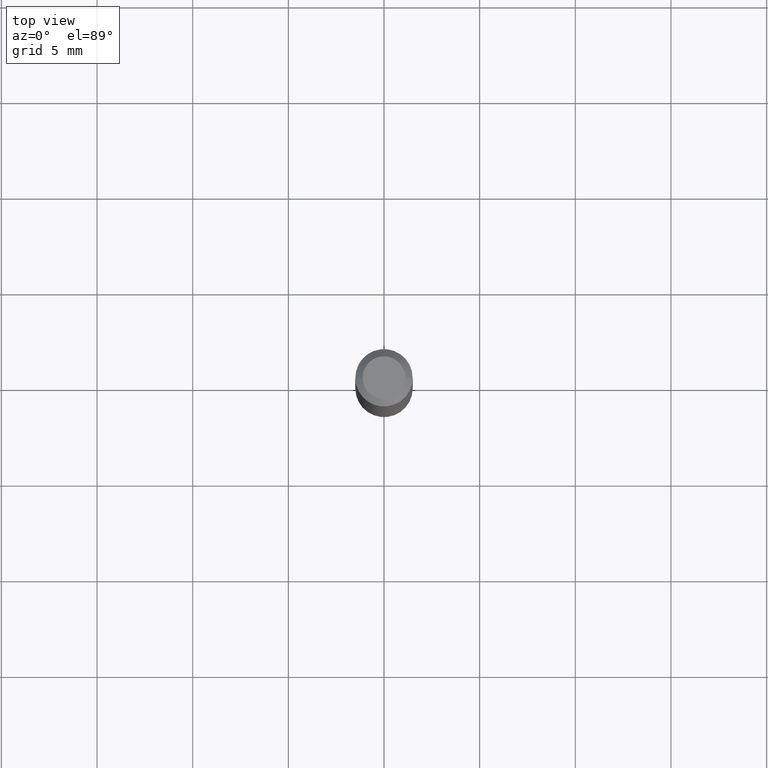
[diagram: clean part render]
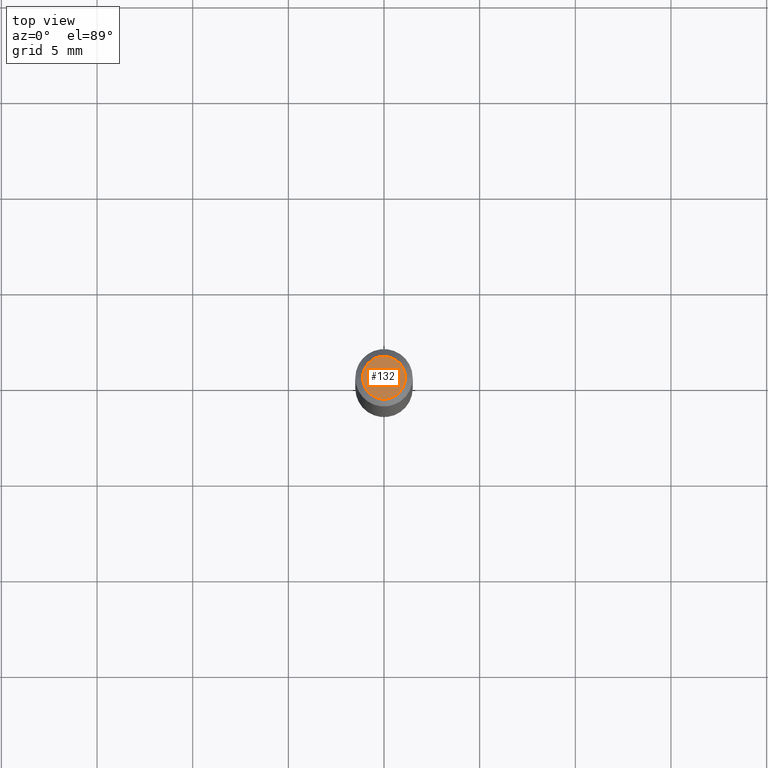
[diagram: same view with one face highlighted and labeled with its STEP entity id]
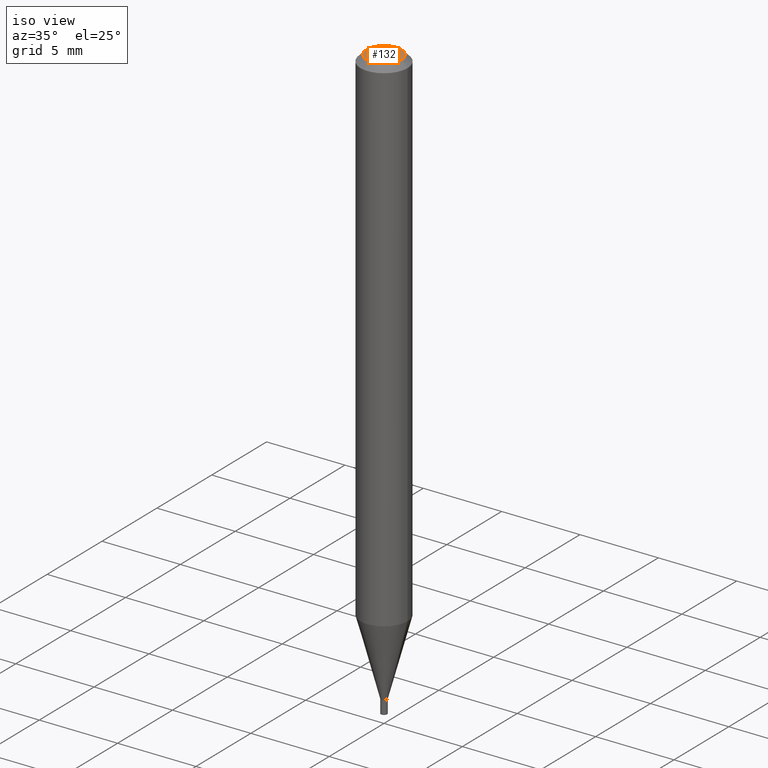
[diagram: same view with one face highlighted and labeled with its STEP entity id]
A machine part, top view. The second image highlights one B-rep face of the part: STEP entity #132.
A second angle (iso view) of the same face is appended — the face is thin or edge-on in the first view.
In plain terms, the highlighted planar face has unit normal (0, -0, -1).
Its self-contained STEP definition (entity closure, byte-faithful):
#11 = CARTESIAN_POINT ( 'NONE',  ( 3.075995059520799729E-16, 0.04404999999999999888, 7.721735782992738734E-17 ) ) ;
#57 = CIRCLE ( 'NONE', #443, 0.04404999999999999888 ) ;
#78 = EDGE_CURVE ( 'NONE', #104, #418, #135, .T. ) ;
#85 = AXIS2_PLACEMENT_3D ( 'NONE', #11, #254, #193 ) ;
#88 = FACE_OUTER_BOUND ( 'NONE', #355, .T. ) ;
#101 = CARTESIAN_POINT ( 'NONE',  ( -1.129890276342019696E-44, 1.613183862664992778E-30, 4.620342216119358569E-16 ) ) ;
#104 = VERTEX_POINT ( 'NONE', #409 ) ;
#125 = DIRECTION ( 'NONE',  ( 1.000000000000000000, -6.982962677686265922E-15, 4.819687581474398999E-29 ) ) ;
#132 = ADVANCED_FACE ( 'NONE', ( #88 ), #326, .F. ) ;
#135 = CIRCLE ( 'NONE', #411, 0.04404999999999999888 ) ;
#148 = DIRECTION ( 'NONE',  ( -2.445468806185136597E-29, 3.491481338843145583E-15, 1.000000000000000000 ) ) ;
#151 = CARTESIAN_POINT ( 'NONE',  ( -1.129890276342019696E-44, 1.613183862664992778E-30, 4.620342216119358569E-16 ) ) ;
#193 = DIRECTION ( 'NONE',  ( -1.000000000000000000, 6.982962677686265922E-15, -4.876176775795935793E-29 ) ) ;
#201 = CARTESIAN_POINT ( 'NONE',  ( 0.04404999999999999888, -3.798447818264452683E-16, 4.620342216119383221E-16 ) ) ;
#207 = DIRECTION ( 'NONE',  ( -2.445468806185136597E-29, 3.491481338843145583E-15, 1.000000000000000000 ) ) ;
#254 = DIRECTION ( 'NONE',  ( 2.438088387897960049E-29, -3.491481338843145188E-15, -1.000000000000000000 ) ) ;
#308 = DIRECTION ( 'NONE',  ( 1.000000000000000000, -6.982962677686265922E-15, 4.819687581474398999E-29 ) ) ;
#311 = ORIENTED_EDGE ( 'NONE', *, *, #78, .T. ) ;
#326 = PLANE ( 'NONE',  #85 ) ;
#355 = EDGE_LOOP ( 'NONE', ( #311, #386 ) ) ;
#363 = EDGE_CURVE ( 'NONE', #418, #104, #57, .T. ) ;
#386 = ORIENTED_EDGE ( 'NONE', *, *, #363, .T. ) ;
#409 = CARTESIAN_POINT ( 'NONE',  ( -0.04404999999999999888, 3.337856159934042520E-16, 4.620342216119336875E-16 ) ) ;
#411 = AXIS2_PLACEMENT_3D ( 'NONE', #151, #148, #125 ) ;
#418 = VERTEX_POINT ( 'NONE', #201 ) ;
#443 = AXIS2_PLACEMENT_3D ( 'NONE', #101, #207, #308 ) ;